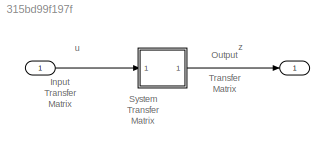
MODEL slx_315bd99f197f
KIND model
CONFIG AbsTol = auto
CONFIG FixedStep = auto
CONFIG MaxStep = auto
CONFIG MinStep = auto
CONFIG RelTol = 1e-3
CONFIG SampleTimeConstraint = Unconstrained
CONFIG Solver = ode45
CONFIG SolverMode = Auto
CONFIG SolverName = ode45
CONFIG StartTime = 0.0
CONFIG StopTime = 10.0
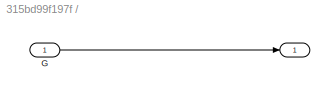
BLOCK [SubSystem]  
  Ports = [1, 1]
  RequestExecContextInheritance = off
BLOCK [Inport]   
  IconDisplay = Port number
BLOCK [Outport]      
  IconDisplay = Port number
BLOCK [Inport]  /						G
  IconDisplay = Port number
BLOCK [Outport]  / 
  IconDisplay = Port number
ANNOTATION (root): Input Transfer Matrix
ANNOTATION (root): Output Transfer Matrix
ANNOTATION (root): System Transfer Matrix
ANNOTATION (root): u
ANNOTATION (root): z
LINE   :1 ->  :1
LINE  /						G:1 ->  / :1
LINE  :1 ->      :1
